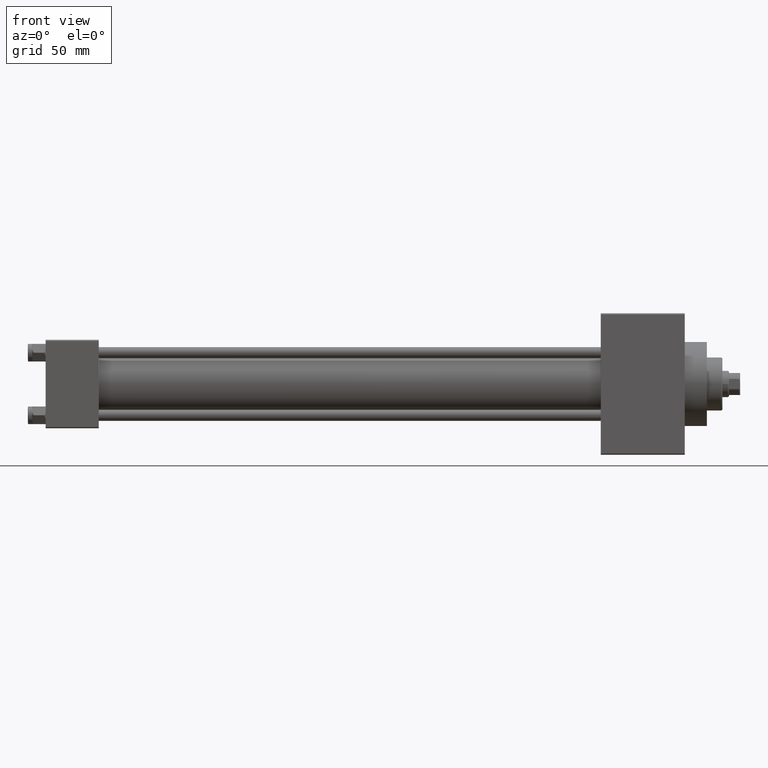
[diagram: clean part render]
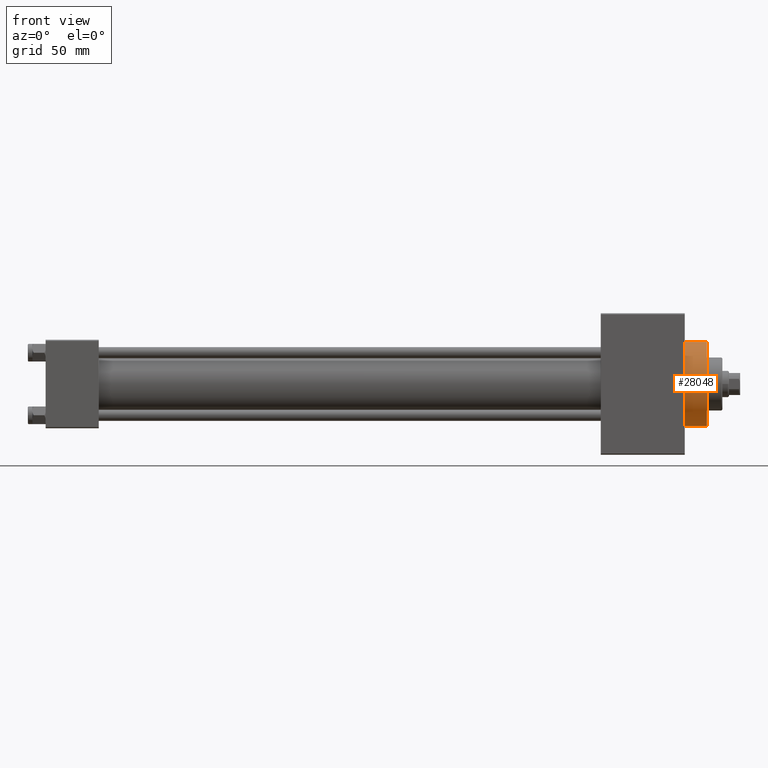
[diagram: same view with one face highlighted and labeled with its STEP entity id]
A machine part, front view. The second image highlights one B-rep face of the part: STEP entity #28048.
In plain terms, the highlighted cylindrical surface (partial cylindrical patch) has radius 19 mm, axis along (-1, -0, -0).
Its self-contained STEP definition (entity closure, byte-faithful):
#152 = VERTEX_POINT ( 'NONE', #42788 ) ;
#512 = VERTEX_POINT ( 'NONE', #36505 ) ;
#2463 = DIRECTION ( 'NONE',  ( -1.000000000000000000, -0.000000000000000000, -0.000000000000000000 ) ) ;
#2934 = CIRCLE ( 'NONE', #29683, 19.00000000000000000 ) ;
#4432 = ORIENTED_EDGE ( 'NONE', *, *, #8479, .T. ) ;
#6398 = CARTESIAN_POINT ( 'NONE',  ( 299.0000000000000000, 0.000000000000000000, 19.00000000000000000 ) ) ;
#8479 = EDGE_CURVE ( 'NONE', #16657, #40942, #2934, .T. ) ;
#9959 = CARTESIAN_POINT ( 'NONE',  ( 289.0000000000000000, 0.000000000000000000, 0.000000000000000000 ) ) ;
#11696 = VECTOR ( 'NONE', #15354, 1000.000000000000000 ) ;
#15354 = DIRECTION ( 'NONE',  ( -1.000000000000000000, -0.000000000000000000, -0.000000000000000000 ) ) ;
#16657 = VERTEX_POINT ( 'NONE', #47095 ) ;
#17155 = DIRECTION ( 'NONE',  ( 1.000000000000000000, 0.000000000000000000, 0.000000000000000000 ) ) ;
#18510 = CARTESIAN_POINT ( 'NONE',  ( 299.0000000000000000, 0.000000000000000000, 0.000000000000000000 ) ) ;
#20651 = FACE_OUTER_BOUND ( 'NONE', #41140, .T. ) ;
#20787 = CIRCLE ( 'NONE', #42163, 19.00000000000000000 ) ;
#21708 = LINE ( 'NONE', #6398, #30119 ) ;
#22040 = LINE ( 'NONE', #28969, #11696 ) ;
#22107 = ORIENTED_EDGE ( 'NONE', *, *, #39839, .T. ) ;
#22808 = DIRECTION ( 'NONE',  ( 0.000000000000000000, 0.000000000000000000, -1.000000000000000000 ) ) ;
#23266 = AXIS2_PLACEMENT_3D ( 'NONE', #35220, #2463, #31188 ) ;
#24460 = CYLINDRICAL_SURFACE ( 'NONE', #23266, 19.00000000000000000 ) ;
#24553 = EDGE_CURVE ( 'NONE', #512, #152, #20787, .T. ) ;
#24570 = DIRECTION ( 'NONE',  ( -1.000000000000000000, -0.000000000000000000, -0.000000000000000000 ) ) ;
#26869 = ORIENTED_EDGE ( 'NONE', *, *, #46991, .F. ) ;
#28048 = ADVANCED_FACE ( 'NONE', ( #20651 ), #24460, .T. ) ;
#28969 = CARTESIAN_POINT ( 'NONE',  ( 299.0000000000000000, 2.326828918379970970E-15, -19.00000000000000000 ) ) ;
#29683 = AXIS2_PLACEMENT_3D ( 'NONE', #9959, #17155, #31727 ) ;
#30119 = VECTOR ( 'NONE', #24570, 1000.000000000000000 ) ;
#31188 = DIRECTION ( 'NONE',  ( 0.000000000000000000, 0.000000000000000000, 1.000000000000000000 ) ) ;
#31727 = DIRECTION ( 'NONE',  ( 0.000000000000000000, 0.000000000000000000, -1.000000000000000000 ) ) ;
#33575 = DIRECTION ( 'NONE',  ( 1.000000000000000000, 0.000000000000000000, 0.000000000000000000 ) ) ;
#35220 = CARTESIAN_POINT ( 'NONE',  ( 299.0000000000000000, 0.000000000000000000, 0.000000000000000000 ) ) ;
#36505 = CARTESIAN_POINT ( 'NONE',  ( 299.0000000000000000, 0.000000000000000000, 19.00000000000000000 ) ) ;
#38511 = CARTESIAN_POINT ( 'NONE',  ( 289.0000000000000000, 2.326828918379970970E-15, -19.00000000000000000 ) ) ;
#39839 = EDGE_CURVE ( 'NONE', #512, #16657, #21708, .T. ) ;
#40942 = VERTEX_POINT ( 'NONE', #38511 ) ;
#41140 = EDGE_LOOP ( 'NONE', ( #26869, #42562, #22107, #4432 ) ) ;
#42163 = AXIS2_PLACEMENT_3D ( 'NONE', #18510, #33575, #22808 ) ;
#42562 = ORIENTED_EDGE ( 'NONE', *, *, #24553, .F. ) ;
#42788 = CARTESIAN_POINT ( 'NONE',  ( 299.0000000000000000, 2.326828918379970970E-15, -19.00000000000000000 ) ) ;
#46991 = EDGE_CURVE ( 'NONE', #152, #40942, #22040, .T. ) ;
#47095 = CARTESIAN_POINT ( 'NONE',  ( 289.0000000000000000, 0.000000000000000000, 19.00000000000000000 ) ) ;